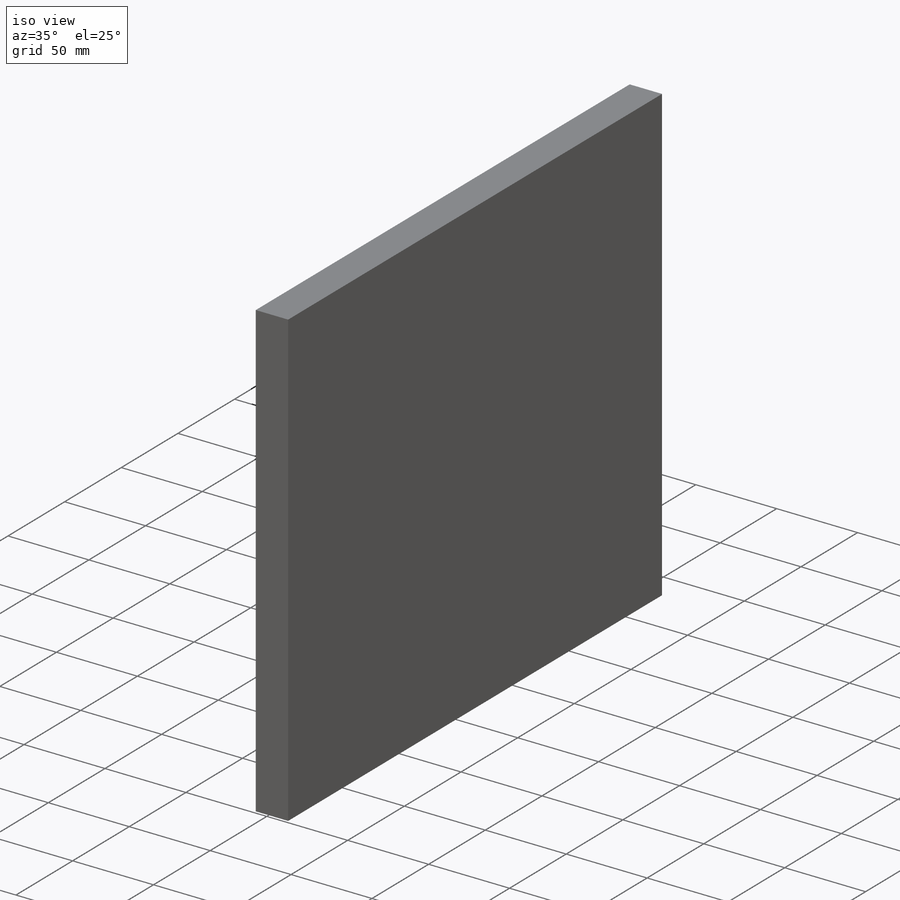
[diagram: iso view]
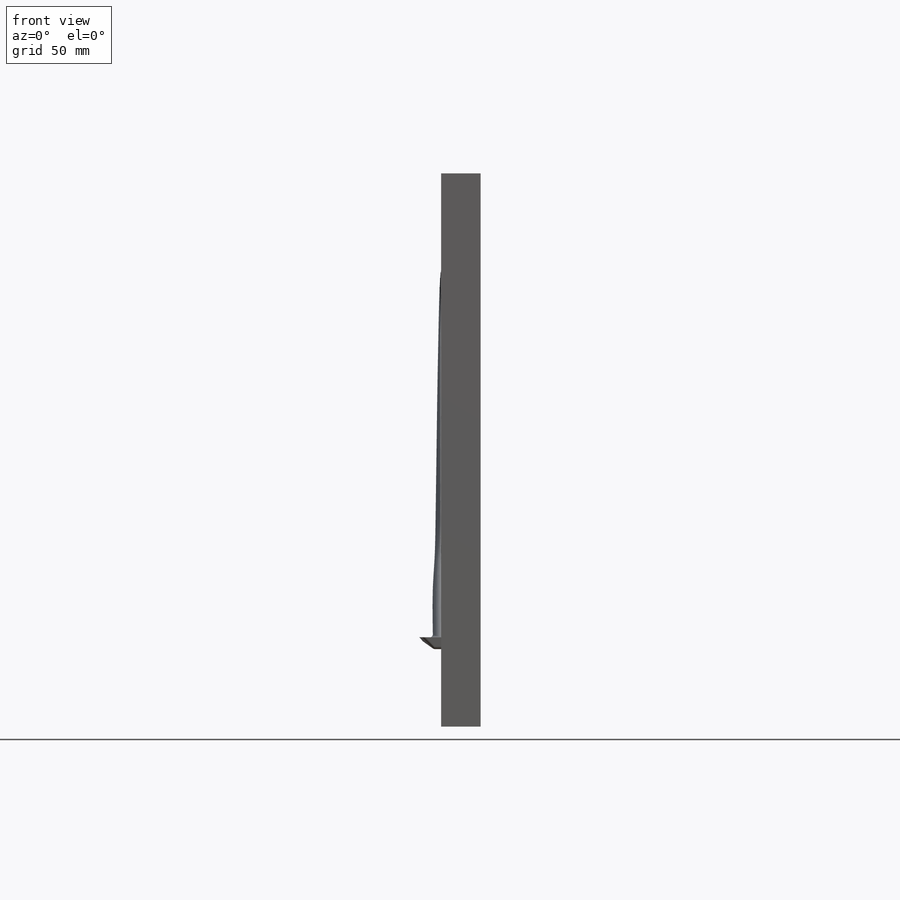
[diagram: front view]
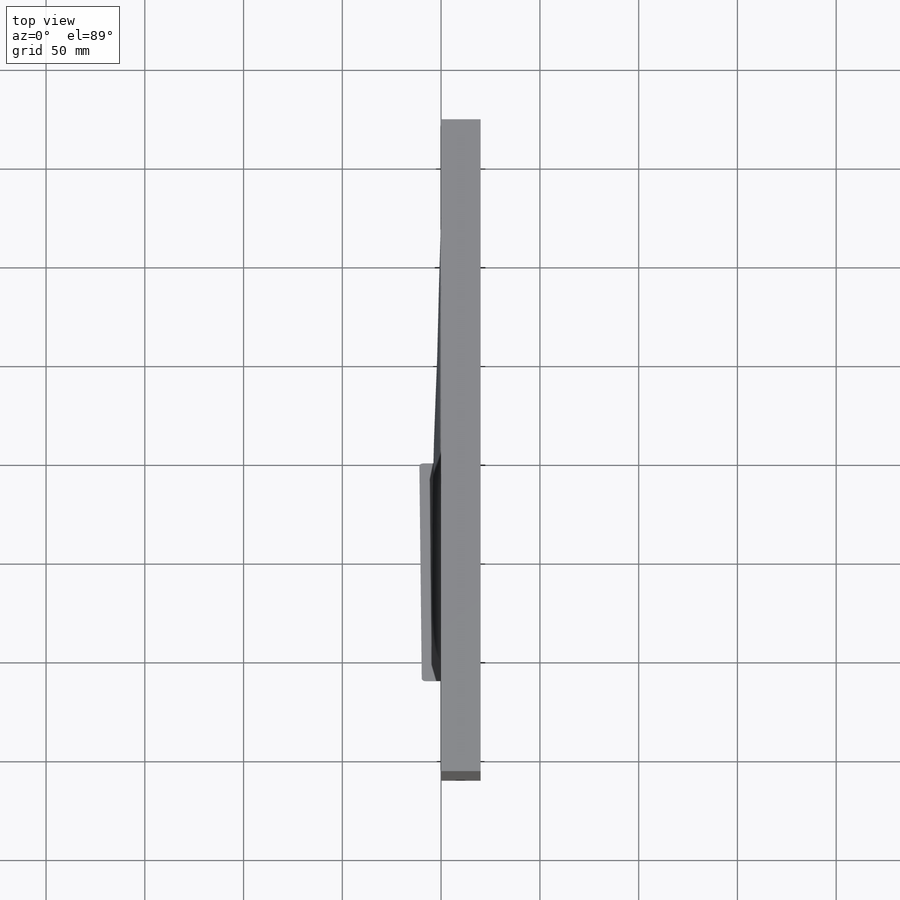
[diagram: top view]
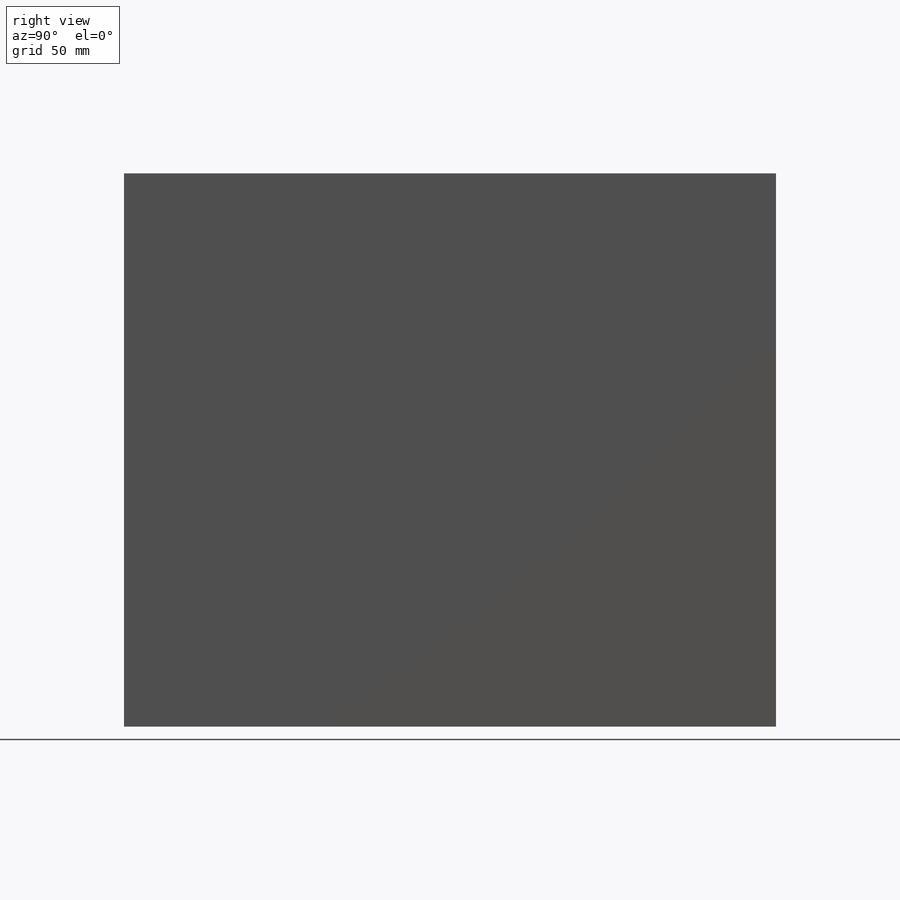
[diagram: right view]
SOLIDWORKS PART (.sldprt)
format: sldprt  version: not decoded by parser v0  size: 5,152,256 bytes
history: native  units: mm
features: sketch x28, plane x18, fillet x4, material x1, extrude x1, cut_extrude x1 + 1 further entry (+8 scaffold rows collapsed)
feature tree (62):
  scaffold x8  (default folders/planes/origin — collapsed)
  material  "Material <nicht festgelegt>"
  "Beschriftungen"  RD1=20mm
  plane  "Ebene vorne"
  plane  "Ebene oben"
  plane  "Ebene rechts"
  sketch  "Grund Skizze"  dims[c1.D18=~106.249328mm c1.D12=~208.415385mm c1.D13=~437.133781mm c1.D6=~524.237055mm c1.D1=20.0mm c1.D2=90.0mm c1.D3=186.0mm c1.D4=198.0mm c1.D5=~165.620473mm c2.D6=~148.021348mm c2.D7=~113.691373mm c2.D8=~101.816631mm c2.D9=~94.009099mm c2.D10=~86.523132mm c2.D11=~75.876889mm c2.D12=~61.143084mm c2.D13=~43.537084mm c2.D14=~32.908459mm c2.D15=146.0mm c2.D16=551.46mm c2.D17=20.0mm c2.D18=90.0mm c2.D19=186.0mm c2.D20=198.0mm c2.D21=~165.620473mm c2.D22=~148.021348mm c2.D23=~113.691373mm c2.D24=~101.816631mm c2.D25=~94.009099mm c2.D26=~86.523132mm c2.D27=~75.876889mm c2.D28=~61.143084mm c2.D29=~43.537084mm c2.D30=~32.908459mm c2.D31=146.0mm c2.D32=551.46mm c2.D33=20.0mm c2.D34=90.0mm c2.D35=186.0mm c2.D36=198.0mm c2.D37=~165.620473mm c2.D38=~148.021348mm c2.D39=~113.691373mm c2.D40=~101.816631mm c2.D41=~94.009099mm c2.D42=~86.523132mm c2.D43=~75.876889mm c2.D44=~61.143084mm c2.D45=~43.537084mm c2.D46=~32.908459mm c2.D47=148.0mm c2.D48=551.46mm c2.D49=~15.328421mm c3.D15=148.0mm c3.D31=~10.661933mm c3.D5=186.0mm c3.D17=12.0mm c3.D18=~17.609068mm c4.D17=40.0mm c4.D7=10.0mm c4.D8=10.0mm c4.D9=20.0mm c4.D10=43.54mm c4.D11=32.91mm c4.D12=20.0mm c4.D5=20.0mm c5.D7=~204.022502mm c5.D8=~34.084232mm c5.D9=~44.328397mm c5.D10=~68.764938mm c5.D11=~82.400752mm c5.D12=~92.566913mm c5.D13=~99.995875mm c5.D14=~107.946035mm c5.D17=~120.010816mm c5.D6=50.0mm c5.D3=~10.221873mm c6.D6=6.0mm c6.D16=~6.581853mm c7.D6=~0.615755mm c7.D16=2.0mm]
  plane  "Ebene wurzel"
  plane  "Ebene 1"
  plane  "Ebene 2"
  plane  "Ebene 3"
  plane  "Ebene 4"
  plane  "Ebene 5"
  plane  "Ebene 6"
  plane  "Ebene 7"
  plane  "Ebene 8"
  plane  "Ebene 9"
  plane  "Ebene 10"
  sketch  "Skizze Wurzel"  dims[D1=8.0mm D2=8.0mm D3=~11.313708mm]
  sketch  "Skizze 1Rippe"  dims[D1=~147.915096mm]
  sketch  "Skizze 2 Rippe"  dims[D1=~119.906083mm]
  sketch  "Skizze 3 Rippe"
  sketch  "Skizze 4 Rippe"
  sketch  "Skizze 5 Rippe"  dims[D1=~107.841035mm]
  sketch  "Skizze 6 Rippe"  dims[D1=~82.316834mm]
  sketch  "Skizze 7 Rippe"  dims[D1=~68.690602mm]
  sketch  "Skizze 8 Rippe"  dims[D1=~44.328397mm]
  sketch  "Skizze 9 Rippe"  dims[D1=~34.043565mm]
  sketch  "Skizze 10 Rippe"  dims[D1=1.0mm]
  sketch  "Skizze leit Vorne"  dims[D1=~66.005168mm]
  sketch  "Skizze Leit Hinten"  dims[D1=~7.633032mm]
  sketch  "Skizze5"  dims[D1=~0.027088mm]
  sketch  "Skizze19"
  sketch  "Skizze6"
  plane  "Ebene1"  Offset=100mm
  sketch  "Skizze7"  dims[D1=~12.456309mm]
  plane  "Ebene2"  Offset=9.4mm
  sketch  "Skizze Kulisse  Vorne"  dims[c1.D1=11.0mm c1.D2=18.0mm c1.D3=18.0mm c1.D4=~25.455844mm c2.D2=11.0mm c3.D2=~134.297208deg c3.D3=45.0mm c4.D2=~8.739432mm c5.D2=~134.297208deg c6.D2=11.0mm c7.D2=45.0deg c7.D3=~9.489909mm c7.D4=~6.255045mm c7.D5=~21.57348mm c7.D6=~6.88674mm c7.D7=45.0deg c7.D8=7.8mm c8.D5=~6.255045mm c8.D6=~21.57348mm c8.D7=~6.88674mm c8.D8=45.0deg c8.D9=7.8mm c8.D10=~21.57348mm c9.D10=45.0deg c9.D11=~21.57348mm c9.D12=~6.88674mm c9.D13=45.0deg c9.D14=7.8mm c10.D11=~6.330397mm c10.D12=~6.330397mm c10.D2=~6.030397mm c10.D3=~19.612265mm c10.D4=~7.551472mm c10.D5=~19.612265mm c11.D5=45.0deg c11.D11=~19.612265mm c12.D11=45.0deg c12.D1=~6.030397mm c12.D12=0.3mm]
  sketch  "Skizze15"  dims[D1=~72.190223mm]
  sketch  "Skizze leit oben vorne"  dims[D1=~84.392652mm]
  sketch  "Skizze leit  oben hinten"
  plane  "Ebene Oben ende Punkt"
  sketch  "Skizze18"
  sketch  "Skizze Kulisse hinten"  dims[c1.D1=2.33mm c1.D2=2.7mm c1.D3=9.09mm c1.D4=11.42mm c1.D5=~15.841695mm c2.D1=~22.047476mm c2.D2=2.33mm c2.D3=~17.905254mm c2.D5=0.3mm c3.D1=5.0deg c4.D1=5.0deg]
  fillet  "Verrundung1"  Radius=1.5mm
  fillet  "Verrundung2"  Radius=1.5mm
  sketch  "Skizze20"  dims[c1.D1=330.0mm c1.D2=~232.407463mm c2.D1=330.0mm c2.D2=280.0mm c2.D3=48.0mm c2.D4=270.0mm c3.D3=~232.407463mm c4.D3=~0.449519deg c5.D3=~46.630593mm c5.D4=330.0mm c5.D1=40.0mm]
  extrude  "Aufsatz-Linear austragen2"  Depth=20mm
  sketch  "Skizze Blutrille"
  plane  "Ebene3"
  sketch  "Skizze22"  dims[c1.D2=~1.802436mm c1.D1=3.6mm c2.D2=~3.608012mm]
  sketch  "Skizze23"  dims[D1=0.0mm D2=3.6mm]
  cut_extrude  "Rille"  Depth=1.8mm
  fillet  "VerrundungInnen"  Radius=1.799mm
  fillet  "VerrundungAussen"  Radius=1.799mm
decode coverage: 27 of 34 modeling features carry decoded parameters; 1 rows unclassified (native names shown)
note: ~ marks probable driven/reference dimensions
note: suppression state not decoded; provenance and decode notes live in map.json
